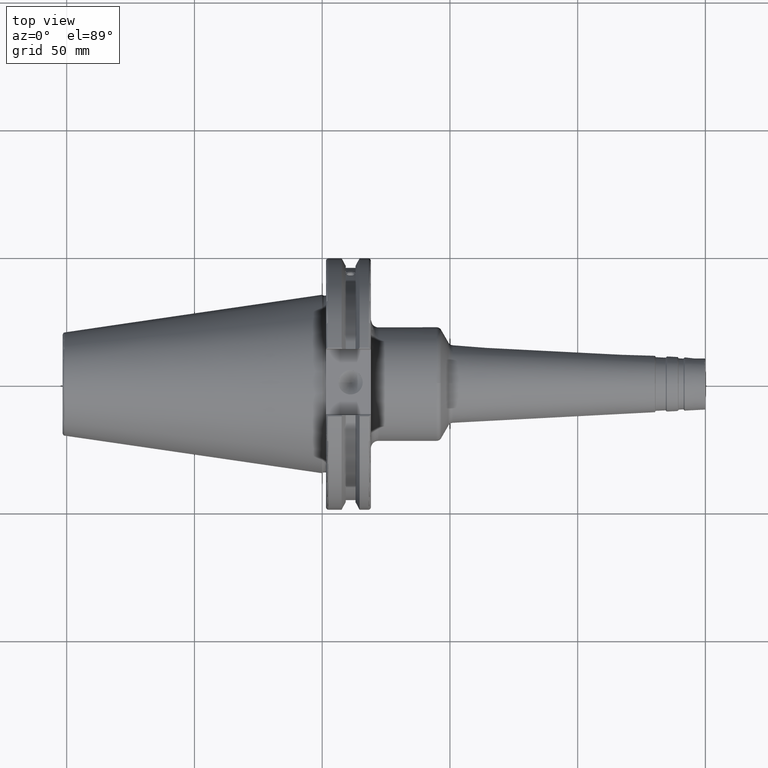
[diagram: clean part render]
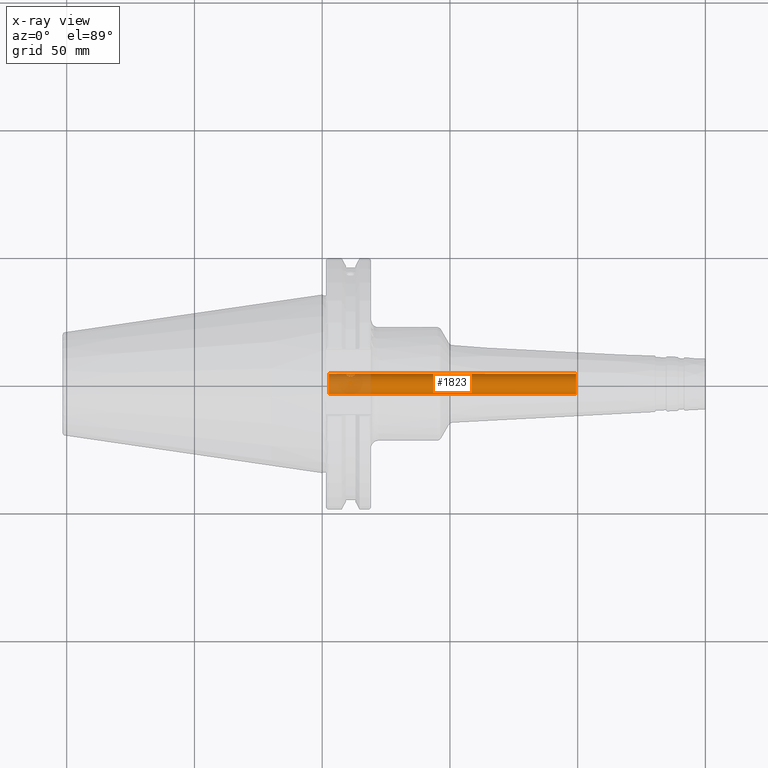
[diagram: x-ray — body ghosted, one internal face saturated and labeled with its STEP entity id]
A machine part, top view, then the same camera in x-ray: the body is ghosted and one INTERNAL B-rep face — a face not visible from any outside direction — is saturated and labeled: STEP entity #1823.
In plain terms, the highlighted cylindrical surface (bore or boss wall) has radius 4 mm, axis along (-1, 0, 0).
Its self-contained STEP definition (entity closure, byte-faithful):
#91=FACE_BOUND('',#281,.T.);
#92=FACE_BOUND('',#282,.T.);
#109=B_SPLINE_CURVE_WITH_KNOTS('',3,(#2776,#2777,#2778,#2779,#2780,#2781,
#2782,#2783,#2784,#2785,#2786,#2787,#2788,#2789,#2790,#2791,#2792,#2793,
#2794,#2795,#2796,#2797,#2798,#2799,#2800,#2801),.UNSPECIFIED.,.F.,.F.,
(4,2,2,2,2,2,2,2,2,2,2,2,4),(0.,0.0618742078368847,0.123748415673769,0.185556382934797,
0.247364350195824,0.309172317456851,0.370980284717878,0.432854492554763,
0.494728700391647,0.556602908228532,0.618477116065417,0.680285083326444,
0.742093050587471),.UNSPECIFIED.);
#110=B_SPLINE_CURVE_WITH_KNOTS('',3,(#2802,#2803,#2804,#2805,#2806,#2807,
#2808,#2809,#2810,#2811),.UNSPECIFIED.,.F.,.F.,(4,2,2,2,4),(0.742093050587471,
0.803901017848498,0.865708985109525,0.92758319294641,0.989457400783294),
 .UNSPECIFIED.);
#111=B_SPLINE_CURVE_WITH_KNOTS('',3,(#2814,#2815,#2816,#2817,#2818,#2819,
#2820,#2821,#2822,#2823,#2824,#2825,#2826,#2827,#2828,#2829,#2830,#2831,
#2832,#2833,#2834,#2835,#2836,#2837,#2838,#2839),.UNSPECIFIED.,.F.,.F.,
(4,2,2,2,2,2,2,2,2,2,2,2,4),(0.,0.0618742078368846,0.123748415673769,0.185556382934796,
0.247364350195824,0.309172317456851,0.370980284717878,0.432854492554763,
0.494728700391647,0.556602908228532,0.618477116065416,0.680285083326443,
0.742093050587471),.UNSPECIFIED.);
#112=B_SPLINE_CURVE_WITH_KNOTS('',3,(#2840,#2841,#2842,#2843,#2844,#2845,
#2846,#2847,#2848,#2849),.UNSPECIFIED.,.F.,.F.,(4,2,2,2,4),(0.742093050587471,
0.803901017848498,0.865708985109525,0.927583192946409,0.989457400783294),
 .UNSPECIFIED.);
#174=FACE_OUTER_BOUND('',#280,.T.);
#280=EDGE_LOOP('',(#1226,#1227,#1228,#1229));
#281=EDGE_LOOP('',(#1230,#1231));
#282=EDGE_LOOP('',(#1232,#1233));
#404=LINE('',#2773,#507);
#507=VECTOR('',#2204,4.);
#611=CIRCLE('',#1955,4.);
#612=CIRCLE('',#1957,4.);
#737=VERTEX_POINT('',#2767);
#738=VERTEX_POINT('',#2771);
#739=VERTEX_POINT('',#2774);
#740=VERTEX_POINT('',#2775);
#741=VERTEX_POINT('',#2812);
#742=VERTEX_POINT('',#2813);
#931=EDGE_CURVE('',#737,#737,#611,.T.);
#933=EDGE_CURVE('',#738,#738,#612,.T.);
#934=EDGE_CURVE('',#738,#737,#404,.T.);
#935=EDGE_CURVE('',#739,#740,#109,.T.);
#936=EDGE_CURVE('',#740,#739,#110,.T.);
#937=EDGE_CURVE('',#741,#742,#111,.T.);
#938=EDGE_CURVE('',#742,#741,#112,.T.);
#1226=ORIENTED_EDGE('',*,*,#933,.F.);
#1227=ORIENTED_EDGE('',*,*,#934,.T.);
#1228=ORIENTED_EDGE('',*,*,#931,.F.);
#1229=ORIENTED_EDGE('',*,*,#934,.F.);
#1230=ORIENTED_EDGE('',*,*,#935,.F.);
#1231=ORIENTED_EDGE('',*,*,#936,.F.);
#1232=ORIENTED_EDGE('',*,*,#937,.F.);
#1233=ORIENTED_EDGE('',*,*,#938,.F.);
#1795=CYLINDRICAL_SURFACE('',#1956,4.);
#1823=ADVANCED_FACE('',(#174,#91,#92),#1795,.F.);
#1955=AXIS2_PLACEMENT_3D('',#2768,#2197,#2198);
#1956=AXIS2_PLACEMENT_3D('',#2770,#2200,#2201);
#1957=AXIS2_PLACEMENT_3D('',#2772,#2202,#2203);
#2197=DIRECTION('center_axis',(-1.,0.,0.));
#2198=DIRECTION('ref_axis',(0.,0.,1.));
#2200=DIRECTION('center_axis',(-1.,0.,0.));
#2201=DIRECTION('ref_axis',(0.,0.,1.));
#2202=DIRECTION('center_axis',(1.,0.,0.));
#2203=DIRECTION('ref_axis',(0.,0.,1.));
#2204=DIRECTION('',(1.,0.,0.));
#2767=CARTESIAN_POINT('',(99.4,-4.89858719658942E-16,-4.00000000000001));
#2768=CARTESIAN_POINT('Origin',(99.4,0.,0.));
#2770=CARTESIAN_POINT('Origin',(-1.09999999999999,0.,0.));
#2771=CARTESIAN_POINT('',(2.59731185421702,4.89858719658941E-16,-4.));
#2772=CARTESIAN_POINT('Origin',(2.59731185421702,0.,0.));
#2773=CARTESIAN_POINT('',(-1.09999999999999,-4.89858719658941E-16,-4.));
#2774=CARTESIAN_POINT('',(11.127,-3.99070482512933,0.272534399093866));
#2775=CARTESIAN_POINT('',(9.506,-3.75877048314363,-1.36808057330267));
#2776=CARTESIAN_POINT('Ctrl Pts',(11.127,-3.99070482512933,0.272534399093866));
#2777=CARTESIAN_POINT('Ctrl Pts',(11.3332473594563,-3.99070482512933,0.272534399093866));
#2778=CARTESIAN_POINT('Ctrl Pts',(11.5513520062584,-3.99457216119088,0.226743676053507));
#2779=CARTESIAN_POINT('Ctrl Pts',(11.9498734476557,-4.00071729112292,0.0477496275625732));
#2780=CARTESIAN_POINT('Ctrl Pts',(12.1305373648484,-4.00187016626142,-0.0849398902486523));
#2781=CARTESIAN_POINT('Ctrl Pts',(12.4157500681296,-3.98448362830594,-0.382128727215544));
#2782=CARTESIAN_POINT('Ctrl Pts',(12.5401588058457,-3.96471483330365,-0.567253235362106));
#2783=CARTESIAN_POINT('Ctrl Pts',(12.7063451981473,-3.88747363651699,-0.963477385751771));
#2784=CARTESIAN_POINT('Ctrl Pts',(12.748,-3.82923571588125,-1.17447893749946));
#2785=CARTESIAN_POINT('Ctrl Pts',(12.748,-3.68830525040602,-1.56168220910589));
#2786=CARTESIAN_POINT('Ctrl Pts',(12.7063451981473,-3.59728890279978,-1.76075338911026));
#2787=CARTESIAN_POINT('Ctrl Pts',(12.5401588058457,-3.40177111784901,-2.11392838199762));
#2788=CARTESIAN_POINT('Ctrl Pts',(12.4157500681296,-3.29791915332174,-2.26844911923433));
#2789=CARTESIAN_POINT('Ctrl Pts',(12.1305373648484,-3.12020871196815,-2.50728482752294));
#2790=CARTESIAN_POINT('Ctrl Pts',(11.9498734476557,-3.03403438039035,-2.60818984144782));
#2791=CARTESIAN_POINT('Ctrl Pts',(11.5513520062584,-2.91427178117607,-2.74135722426544));
#2792=CARTESIAN_POINT('Ctrl Pts',(11.3332473594563,-2.88187552046751,-2.77394907749405));
#2793=CARTESIAN_POINT('Ctrl Pts',(10.9207526405437,-2.88187552046751,-2.77394907749405));
#2794=CARTESIAN_POINT('Ctrl Pts',(10.7026479937416,-2.91427178117607,-2.74135722426544));
#2795=CARTESIAN_POINT('Ctrl Pts',(10.3041265523443,-3.03403438039035,-2.60818984144782));
#2796=CARTESIAN_POINT('Ctrl Pts',(10.1234626351516,-3.12020871196815,-2.50728482752294));
#2797=CARTESIAN_POINT('Ctrl Pts',(9.83824993187043,-3.29791915332174,-2.26844911923433));
#2798=CARTESIAN_POINT('Ctrl Pts',(9.71384119415433,-3.40177111784901,-2.11392838199762));
#2799=CARTESIAN_POINT('Ctrl Pts',(9.54765480185271,-3.59728890279978,-1.76075338911025));
#2800=CARTESIAN_POINT('Ctrl Pts',(9.506,-3.68830525040602,-1.56168220910589));
#2801=CARTESIAN_POINT('Ctrl Pts',(9.506,-3.75877048314363,-1.36808057330268));
#2802=CARTESIAN_POINT('Ctrl Pts',(9.506,-3.75877048314363,-1.36808057330268));
#2803=CARTESIAN_POINT('Ctrl Pts',(9.506,-3.82923571588125,-1.17447893749946));
#2804=CARTESIAN_POINT('Ctrl Pts',(9.54765480185271,-3.88747363651699,-0.963477385751772));
#2805=CARTESIAN_POINT('Ctrl Pts',(9.71384119415433,-3.96471483330365,-0.567253235362106));
#2806=CARTESIAN_POINT('Ctrl Pts',(9.83824993187043,-3.98448362830594,-0.382128727215545));
#2807=CARTESIAN_POINT('Ctrl Pts',(10.1234626351516,-4.00187016626142,-0.0849398902486535));
#2808=CARTESIAN_POINT('Ctrl Pts',(10.3041265523443,-4.00071729112292,0.0477496275625707));
#2809=CARTESIAN_POINT('Ctrl Pts',(10.7026479937416,-3.99457216119088,0.226743676053506));
#2810=CARTESIAN_POINT('Ctrl Pts',(10.9207526405437,-3.99070482512933,0.272534399093865));
#2811=CARTESIAN_POINT('Ctrl Pts',(11.127,-3.99070482512933,0.272534399093866));
#2812=CARTESIAN_POINT('',(11.127,3.99070482512933,-0.272534399093866));
#2813=CARTESIAN_POINT('',(9.506,3.75877048314363,1.36808057330268));
#2814=CARTESIAN_POINT('Ctrl Pts',(11.127,3.99070482512933,-0.272534399093866));
#2815=CARTESIAN_POINT('Ctrl Pts',(11.3332473594563,3.99070482512933,-0.272534399093866));
#2816=CARTESIAN_POINT('Ctrl Pts',(11.5513520062584,3.99457216119088,-0.226743676053506));
#2817=CARTESIAN_POINT('Ctrl Pts',(11.9498734476557,4.00071729112292,-0.0477496275625722));
#2818=CARTESIAN_POINT('Ctrl Pts',(12.1305373648484,4.00187016626142,0.0849398902486526));
#2819=CARTESIAN_POINT('Ctrl Pts',(12.4157500681296,3.98448362830594,0.382128727215544));
#2820=CARTESIAN_POINT('Ctrl Pts',(12.5401588058457,3.96471483330365,0.567253235362105));
#2821=CARTESIAN_POINT('Ctrl Pts',(12.7063451981473,3.88747363651699,0.96347738575177));
#2822=CARTESIAN_POINT('Ctrl Pts',(12.748,3.82923571588125,1.17447893749946));
#2823=CARTESIAN_POINT('Ctrl Pts',(12.748,3.68830525040602,1.56168220910589));
#2824=CARTESIAN_POINT('Ctrl Pts',(12.7063451981473,3.59728890279978,1.76075338911026));
#2825=CARTESIAN_POINT('Ctrl Pts',(12.5401588058457,3.40177111784901,2.11392838199762));
#2826=CARTESIAN_POINT('Ctrl Pts',(12.4157500681296,3.29791915332174,2.26844911923433));
#2827=CARTESIAN_POINT('Ctrl Pts',(12.1305373648484,3.12020871196815,2.50728482752294));
#2828=CARTESIAN_POINT('Ctrl Pts',(11.9498734476557,3.03403438039035,2.60818984144782));
#2829=CARTESIAN_POINT('Ctrl Pts',(11.5513520062584,2.91427178117607,2.74135722426544));
#2830=CARTESIAN_POINT('Ctrl Pts',(11.3332473594563,2.88187552046751,2.77394907749405));
#2831=CARTESIAN_POINT('Ctrl Pts',(10.9207526405437,2.88187552046751,2.77394907749405));
#2832=CARTESIAN_POINT('Ctrl Pts',(10.7026479937416,2.91427178117607,2.74135722426544));
#2833=CARTESIAN_POINT('Ctrl Pts',(10.3041265523443,3.03403438039035,2.60818984144782));
#2834=CARTESIAN_POINT('Ctrl Pts',(10.1234626351516,3.12020871196815,2.50728482752294));
#2835=CARTESIAN_POINT('Ctrl Pts',(9.83824993187043,3.29791915332174,2.26844911923433));
#2836=CARTESIAN_POINT('Ctrl Pts',(9.71384119415433,3.40177111784901,2.11392838199762));
#2837=CARTESIAN_POINT('Ctrl Pts',(9.54765480185271,3.59728890279978,1.76075338911025));
#2838=CARTESIAN_POINT('Ctrl Pts',(9.506,3.68830525040602,1.56168220910589));
#2839=CARTESIAN_POINT('Ctrl Pts',(9.506,3.75877048314363,1.36808057330268));
#2840=CARTESIAN_POINT('Ctrl Pts',(9.506,3.75877048314363,1.36808057330268));
#2841=CARTESIAN_POINT('Ctrl Pts',(9.506,3.82923571588125,1.17447893749946));
#2842=CARTESIAN_POINT('Ctrl Pts',(9.54765480185271,3.88747363651699,0.963477385751772));
#2843=CARTESIAN_POINT('Ctrl Pts',(9.71384119415433,3.96471483330365,0.567253235362106));
#2844=CARTESIAN_POINT('Ctrl Pts',(9.83824993187043,3.98448362830594,0.382128727215545));
#2845=CARTESIAN_POINT('Ctrl Pts',(10.1234626351516,4.00187016626142,0.0849398902486539));
#2846=CARTESIAN_POINT('Ctrl Pts',(10.3041265523443,4.00071729112292,-0.0477496275625721));
#2847=CARTESIAN_POINT('Ctrl Pts',(10.7026479937416,3.99457216119088,-0.226743676053506));
#2848=CARTESIAN_POINT('Ctrl Pts',(10.9207526405437,3.99070482512933,-0.272534399093866));
#2849=CARTESIAN_POINT('Ctrl Pts',(11.127,3.99070482512933,-0.272534399093866));